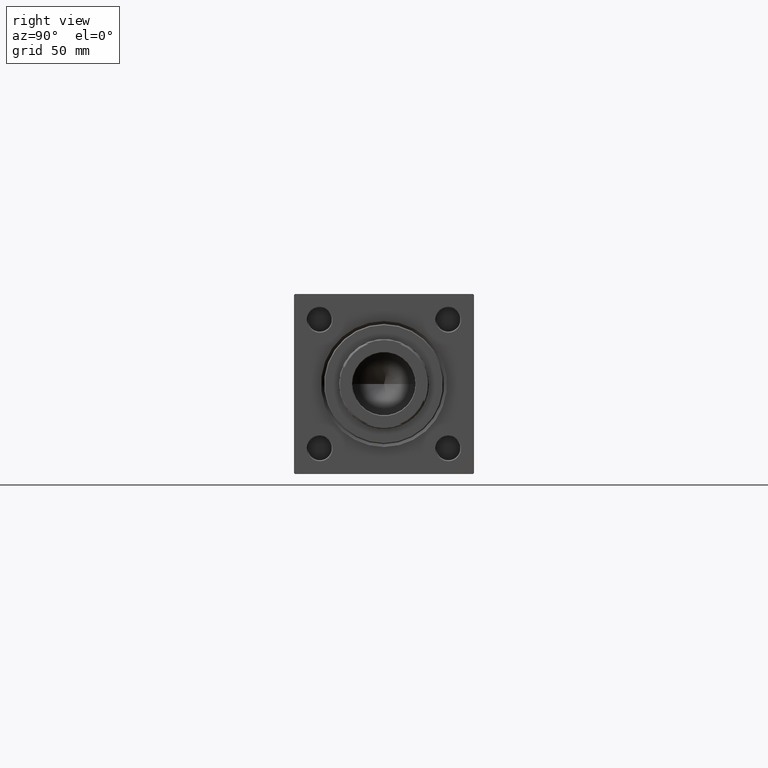
[diagram: clean part render]
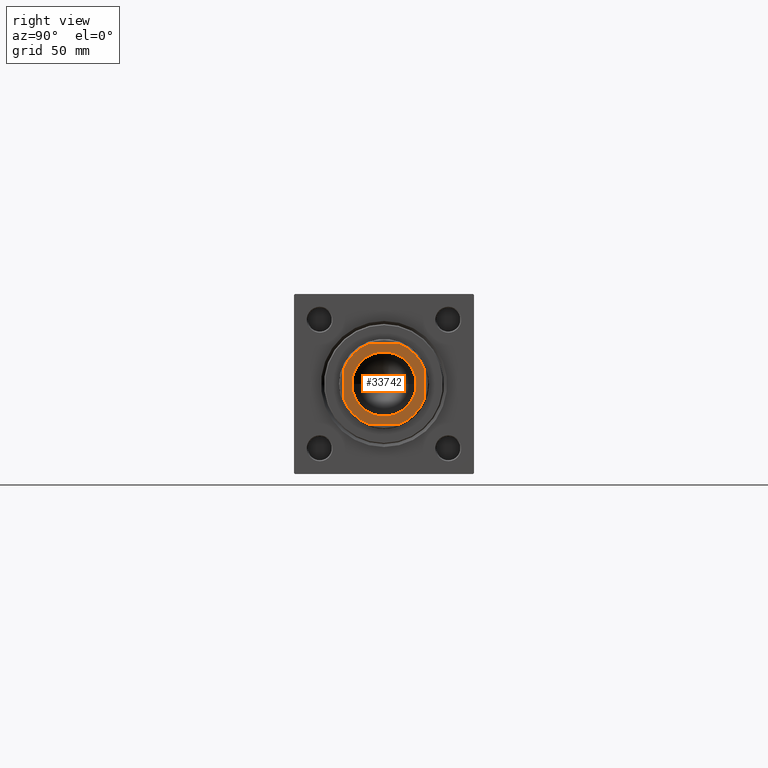
[diagram: same view with one face highlighted and labeled with its STEP entity id]
A machine part, right view. The second image highlights one B-rep face of the part: STEP entity #33742.
In plain terms, the highlighted planar face has unit normal (1, 0, 0).
Its self-contained STEP definition (entity closure, byte-faithful):
#1 = ORIENTED_EDGE ( 'NONE', *, *, #8636, .T. ) ;
#184 = CARTESIAN_POINT ( 'NONE',  ( 7.889866919029696390, -20.00000000000000000, 290.0000000000000000 ) ) ;
#1095 = VERTEX_POINT ( 'NONE', #5077 ) ;
#1658 = DIRECTION ( 'NONE',  ( 1.000000000000000000, 0.000000000000000000, 0.000000000000000000 ) ) ;
#2211 = CIRCLE ( 'NONE', #39466, 16.05000000000006466 ) ;
#2765 = DIRECTION ( 'NONE',  ( -0.000000000000000000, 0.000000000000000000, 1.000000000000000000 ) ) ;
#2799 = VERTEX_POINT ( 'NONE', #6730 ) ;
#3467 = PLANE ( 'NONE',  #12647 ) ;
#3625 = ORIENTED_EDGE ( 'NONE', *, *, #15973, .T. ) ;
#4856 = AXIS2_PLACEMENT_3D ( 'NONE', #31991, #9202, #23899 ) ;
#4922 = VECTOR ( 'NONE', #28385, 1000.000000000000000 ) ;
#5077 = CARTESIAN_POINT ( 'NONE',  ( -7.889866919029763004, -20.00000000000000000, 290.0000000000000000 ) ) ;
#5556 = ORIENTED_EDGE ( 'NONE', *, *, #10809, .T. ) ;
#5922 = VERTEX_POINT ( 'NONE', #33978 ) ;
#6329 = EDGE_CURVE ( 'NONE', #25378, #9556, #29820, .T. ) ;
#6720 = CARTESIAN_POINT ( 'NONE',  ( 0.000000000000000000, 0.000000000000000000, 290.0000000000000000 ) ) ;
#6730 = CARTESIAN_POINT ( 'NONE',  ( -7.889866919029755898, 20.00000000000000000, 290.0000000000000000 ) ) ;
#7301 = VERTEX_POINT ( 'NONE', #33928 ) ;
#8636 = EDGE_CURVE ( 'NONE', #28098, #5922, #12844, .T. ) ;
#8661 = ORIENTED_EDGE ( 'NONE', *, *, #29768, .T. ) ;
#8844 = VECTOR ( 'NONE', #39441, 1000.000000000000000 ) ;
#9202 = DIRECTION ( 'NONE',  ( -0.000000000000000000, 0.000000000000000000, 1.000000000000000000 ) ) ;
#9556 = VERTEX_POINT ( 'NONE', #23181 ) ;
#10620 = DIRECTION ( 'NONE',  ( 0.000000000000000000, -0.000000000000000000, -1.000000000000000000 ) ) ;
#10809 = EDGE_CURVE ( 'NONE', #35325, #7301, #42082, .T. ) ;
#11068 = FACE_OUTER_BOUND ( 'NONE', #16415, .T. ) ;
#11621 = CARTESIAN_POINT ( 'NONE',  ( 0.000000000000000000, 0.000000000000000000, 290.0000000000000000 ) ) ;
#11920 = DIRECTION ( 'NONE',  ( 1.000000000000000000, 0.000000000000000000, 0.000000000000000000 ) ) ;
#12647 = AXIS2_PLACEMENT_3D ( 'NONE', #34365, #14378, #15127 ) ;
#12682 = LINE ( 'NONE', #28124, #4922 ) ;
#12844 = LINE ( 'NONE', #23989, #8844 ) ;
#13321 = DIRECTION ( 'NONE',  ( -0.000000000000000000, 0.000000000000000000, 1.000000000000000000 ) ) ;
#13931 = CARTESIAN_POINT ( 'NONE',  ( -20.00000000000000000, 7.889866919029752346, 290.0000000000000000 ) ) ;
#14021 = CIRCLE ( 'NONE', #20482, 21.50000000000000355 ) ;
#14378 = DIRECTION ( 'NONE',  ( -0.000000000000000000, 0.000000000000000000, 1.000000000000000000 ) ) ;
#15127 = DIRECTION ( 'NONE',  ( 1.000000000000000000, 0.000000000000000000, 0.000000000000000000 ) ) ;
#15850 = ORIENTED_EDGE ( 'NONE', *, *, #18310, .T. ) ;
#15973 = EDGE_CURVE ( 'NONE', #32778, #23486, #30899, .T. ) ;
#16415 = EDGE_LOOP ( 'NONE', ( #36508, #39587, #30484, #8661, #1, #15850, #47955, #5556 ) ) ;
#16482 = EDGE_LOOP ( 'NONE', ( #3625, #23019 ) ) ;
#18310 = EDGE_CURVE ( 'NONE', #5922, #1095, #14021, .T. ) ;
#18849 = VECTOR ( 'NONE', #36234, 1000.000000000000000 ) ;
#20482 = AXIS2_PLACEMENT_3D ( 'NONE', #46265, #50063, #26741 ) ;
#21648 = EDGE_CURVE ( 'NONE', #9556, #2799, #44846, .T. ) ;
#21786 = CARTESIAN_POINT ( 'NONE',  ( -20.00000000000000355, 20.00000000000000000, 290.0000000000000000 ) ) ;
#23019 = ORIENTED_EDGE ( 'NONE', *, *, #37769, .T. ) ;
#23140 = CIRCLE ( 'NONE', #37688, 21.50000000000000000 ) ;
#23181 = CARTESIAN_POINT ( 'NONE',  ( 7.889866919029708825, 20.00000000000000000, 290.0000000000000000 ) ) ;
#23486 = VERTEX_POINT ( 'NONE', #26917 ) ;
#23899 = DIRECTION ( 'NONE',  ( 1.000000000000000000, 0.000000000000000000, 0.000000000000000000 ) ) ;
#23989 = CARTESIAN_POINT ( 'NONE',  ( -20.00000000000000355, 20.00000000000000000, 290.0000000000000000 ) ) ;
#25378 = VERTEX_POINT ( 'NONE', #46367 ) ;
#26563 = AXIS2_PLACEMENT_3D ( 'NONE', #29616, #2765, #42973 ) ;
#26741 = DIRECTION ( 'NONE',  ( 1.000000000000000000, 0.000000000000000000, 0.000000000000000000 ) ) ;
#26917 = CARTESIAN_POINT ( 'NONE',  ( -16.05000000000006466, 1.965558112631510093E-15, 290.0000000000000000 ) ) ;
#28098 = VERTEX_POINT ( 'NONE', #13931 ) ;
#28111 = VECTOR ( 'NONE', #11920, 1000.000000000000000 ) ;
#28124 = CARTESIAN_POINT ( 'NONE',  ( 19.99999999999999645, 20.00000000000000000, 290.0000000000000000 ) ) ;
#28385 = DIRECTION ( 'NONE',  ( -1.734723475976807094E-16, 1.000000000000000000, -0.000000000000000000 ) ) ;
#29616 = CARTESIAN_POINT ( 'NONE',  ( 0.000000000000000000, 0.000000000000000000, 290.0000000000000000 ) ) ;
#29768 = EDGE_CURVE ( 'NONE', #2799, #28098, #23140, .T. ) ;
#29820 = CIRCLE ( 'NONE', #26563, 21.49999999999998579 ) ;
#30484 = ORIENTED_EDGE ( 'NONE', *, *, #21648, .T. ) ;
#30899 = CIRCLE ( 'NONE', #43857, 16.05000000000006466 ) ;
#31991 = CARTESIAN_POINT ( 'NONE',  ( 0.000000000000000000, 0.000000000000000000, 290.0000000000000000 ) ) ;
#32778 = VERTEX_POINT ( 'NONE', #44349 ) ;
#33618 = FACE_BOUND ( 'NONE', #16482, .T. ) ;
#33742 = ADVANCED_FACE ( 'NONE', ( #33618, #11068 ), #3467, .T. ) ;
#33928 = CARTESIAN_POINT ( 'NONE',  ( 20.00000000000000000, -7.889866919029691061, 290.0000000000000000 ) ) ;
#33978 = CARTESIAN_POINT ( 'NONE',  ( -20.00000000000000000, -7.889866919029765668, 290.0000000000000000 ) ) ;
#34365 = CARTESIAN_POINT ( 'NONE',  ( 0.000000000000000000, 0.000000000000000000, 290.0000000000000000 ) ) ;
#35325 = VERTEX_POINT ( 'NONE', #184 ) ;
#36234 = DIRECTION ( 'NONE',  ( -1.000000000000000000, -0.000000000000000000, -0.000000000000000000 ) ) ;
#36508 = ORIENTED_EDGE ( 'NONE', *, *, #49418, .T. ) ;
#37497 = EDGE_CURVE ( 'NONE', #1095, #35325, #38770, .T. ) ;
#37688 = AXIS2_PLACEMENT_3D ( 'NONE', #6720, #13321, #1658 ) ;
#37769 = EDGE_CURVE ( 'NONE', #23486, #32778, #2211, .T. ) ;
#37962 = DIRECTION ( 'NONE',  ( 0.000000000000000000, -0.000000000000000000, -1.000000000000000000 ) ) ;
#38770 = LINE ( 'NONE', #42832, #28111 ) ;
#39441 = DIRECTION ( 'NONE',  ( 1.734723475976807094E-16, -1.000000000000000000, 0.000000000000000000 ) ) ;
#39466 = AXIS2_PLACEMENT_3D ( 'NONE', #11621, #37962, #45592 ) ;
#39587 = ORIENTED_EDGE ( 'NONE', *, *, #6329, .T. ) ;
#42082 = CIRCLE ( 'NONE', #4856, 21.49999999999998224 ) ;
#42832 = CARTESIAN_POINT ( 'NONE',  ( -19.99999999999999645, -20.00000000000000000, 290.0000000000000000 ) ) ;
#42973 = DIRECTION ( 'NONE',  ( 1.000000000000000000, 0.000000000000000000, 0.000000000000000000 ) ) ;
#43857 = AXIS2_PLACEMENT_3D ( 'NONE', #50136, #10620, #45335 ) ;
#44349 = CARTESIAN_POINT ( 'NONE',  ( 16.05000000000006466, 0.000000000000000000, 290.0000000000000000 ) ) ;
#44846 = LINE ( 'NONE', #21786, #18849 ) ;
#45335 = DIRECTION ( 'NONE',  ( 1.000000000000000000, 0.000000000000000000, 0.000000000000000000 ) ) ;
#45592 = DIRECTION ( 'NONE',  ( 1.000000000000000000, 0.000000000000000000, 0.000000000000000000 ) ) ;
#46265 = CARTESIAN_POINT ( 'NONE',  ( 0.000000000000000000, 0.000000000000000000, 290.0000000000000000 ) ) ;
#46367 = CARTESIAN_POINT ( 'NONE',  ( 20.00000000000000000, 7.889866919029710601, 290.0000000000000000 ) ) ;
#47955 = ORIENTED_EDGE ( 'NONE', *, *, #37497, .T. ) ;
#49418 = EDGE_CURVE ( 'NONE', #7301, #25378, #12682, .T. ) ;
#50063 = DIRECTION ( 'NONE',  ( -0.000000000000000000, 0.000000000000000000, 1.000000000000000000 ) ) ;
#50136 = CARTESIAN_POINT ( 'NONE',  ( 0.000000000000000000, 0.000000000000000000, 290.0000000000000000 ) ) ;